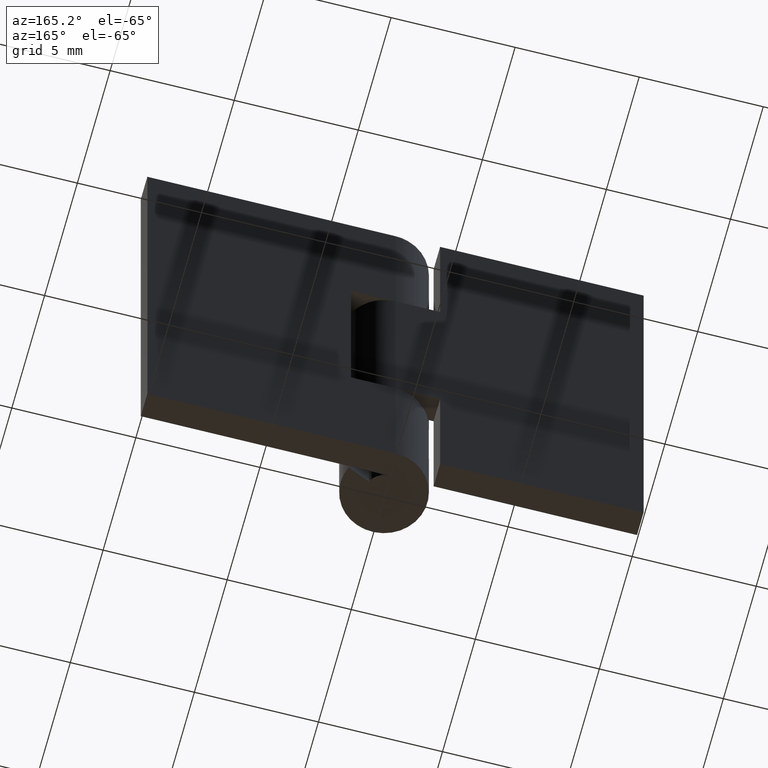
[diagram: clean part render]
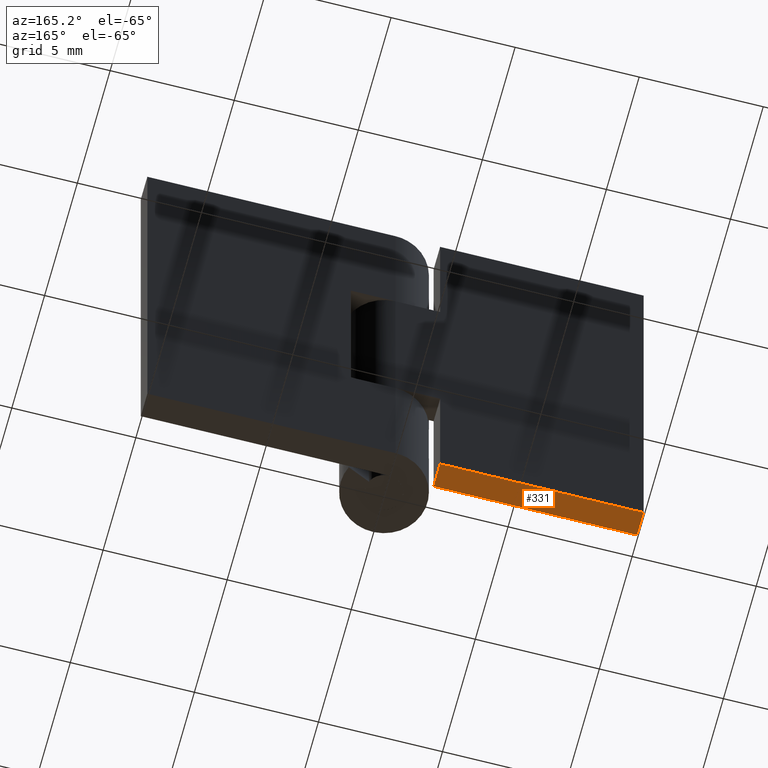
[diagram: same view with one face highlighted and labeled with its STEP entity id]
A machine part, auxiliary view. The second image highlights one B-rep face of the part: STEP entity #331.
In plain terms, the highlighted face is a freeform B-spline surface patch.
Its self-contained STEP definition (entity closure, byte-faithful):
#127=CARTESIAN_POINT('',(-1.800003000000000,0.750000000000000,0.0));
#128=VERTEX_POINT('',#127);
#129=CARTESIAN_POINT('',(-1.800003000000000,1.750000000000030,0.0));
#130=VERTEX_POINT('',#129);
#131=CARTESIAN_POINT('',(-1.800003000000000,0.750000000000000,0.0));
#132=CARTESIAN_POINT('',(-1.800003000000000,1.750000000000030,0.0));
#133=QUASI_UNIFORM_CURVE('',1,(#131,#132),.UNSPECIFIED.,.F.,.U.);
#134=EDGE_CURVE('',#128,#130,#133,.T.);
#261=CARTESIAN_POINT('',(-10.0,0.750000000000000,0.0));
#262=VERTEX_POINT('',#261);
#263=CARTESIAN_POINT('',(-10.0,1.750000000000000,0.0));
#264=VERTEX_POINT('',#263);
#265=CARTESIAN_POINT('',(-10.0,0.750000000000000,0.0));
#266=CARTESIAN_POINT('',(-10.0,1.750000000000000,0.0));
#267=QUASI_UNIFORM_CURVE('',1,(#265,#266),.UNSPECIFIED.,.F.,.U.);
#268=EDGE_CURVE('',#262,#264,#267,.T.);
#312=CARTESIAN_POINT('',(-10.409589834256820,0.700050001938192,0.0));
#313=CARTESIAN_POINT('',(-1.390412945802126,0.700050001938192,0.0));
#314=CARTESIAN_POINT('',(-10.409589834256820,1.799950024883928,0.0));
#315=CARTESIAN_POINT('',(-1.390412945802126,1.799950024883928,0.0));
#316=B_SPLINE_SURFACE_WITH_KNOTS('',1,1,((#312,#314),(#313,#315)),.UNSPECIFIED.,.F.,.F.,.U.,(2,2),(2,2),(0.0,9.019176888454689),(0.041708334948495,0.958291687403247),.UNSPECIFIED.);
#317=CARTESIAN_POINT('',(-10.0,1.750000000000000,0.0));
#318=CARTESIAN_POINT('',(-1.800003000000000,1.750000000000030,0.0));
#319=QUASI_UNIFORM_CURVE('',1,(#317,#318),.UNSPECIFIED.,.F.,.U.);
#320=EDGE_CURVE('',#264,#130,#319,.T.);
#321=ORIENTED_EDGE('',*,*,#320,.T.);
#322=ORIENTED_EDGE('',*,*,#134,.F.);
#323=CARTESIAN_POINT('',(-1.800003000000000,0.750000000000000,0.0));
#324=CARTESIAN_POINT('',(-10.0,0.750000000000000,0.0));
#325=QUASI_UNIFORM_CURVE('',1,(#323,#324),.UNSPECIFIED.,.F.,.U.);
#326=EDGE_CURVE('',#128,#262,#325,.T.);
#327=ORIENTED_EDGE('',*,*,#326,.T.);
#328=ORIENTED_EDGE('',*,*,#268,.T.);
#329=EDGE_LOOP('',(#321,#322,#327,#328));
#330=FACE_OUTER_BOUND('',#329,.T.);
#331=ADVANCED_FACE('',(#330),#316,.F.);